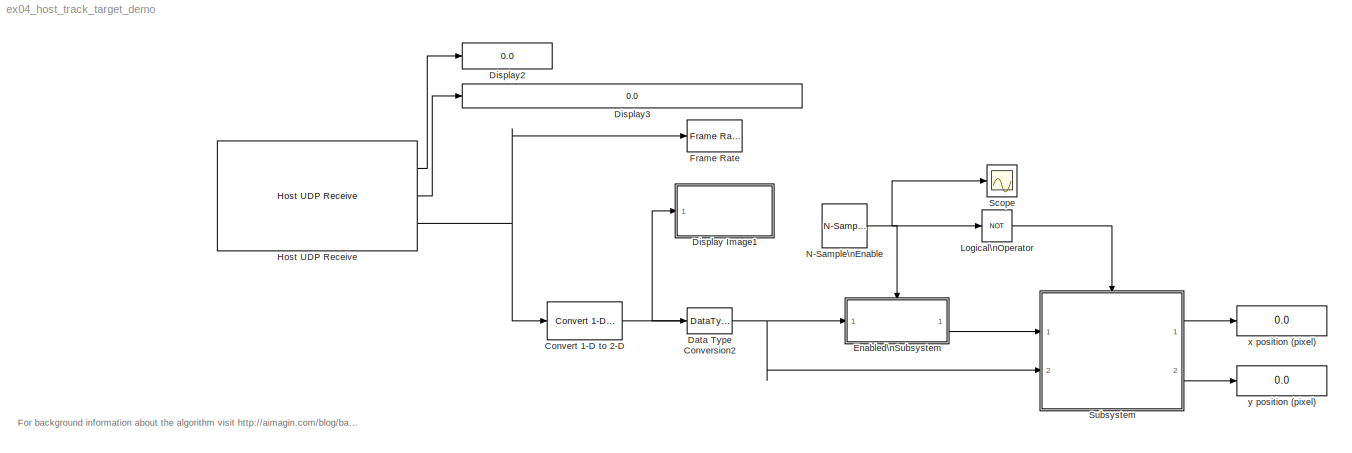
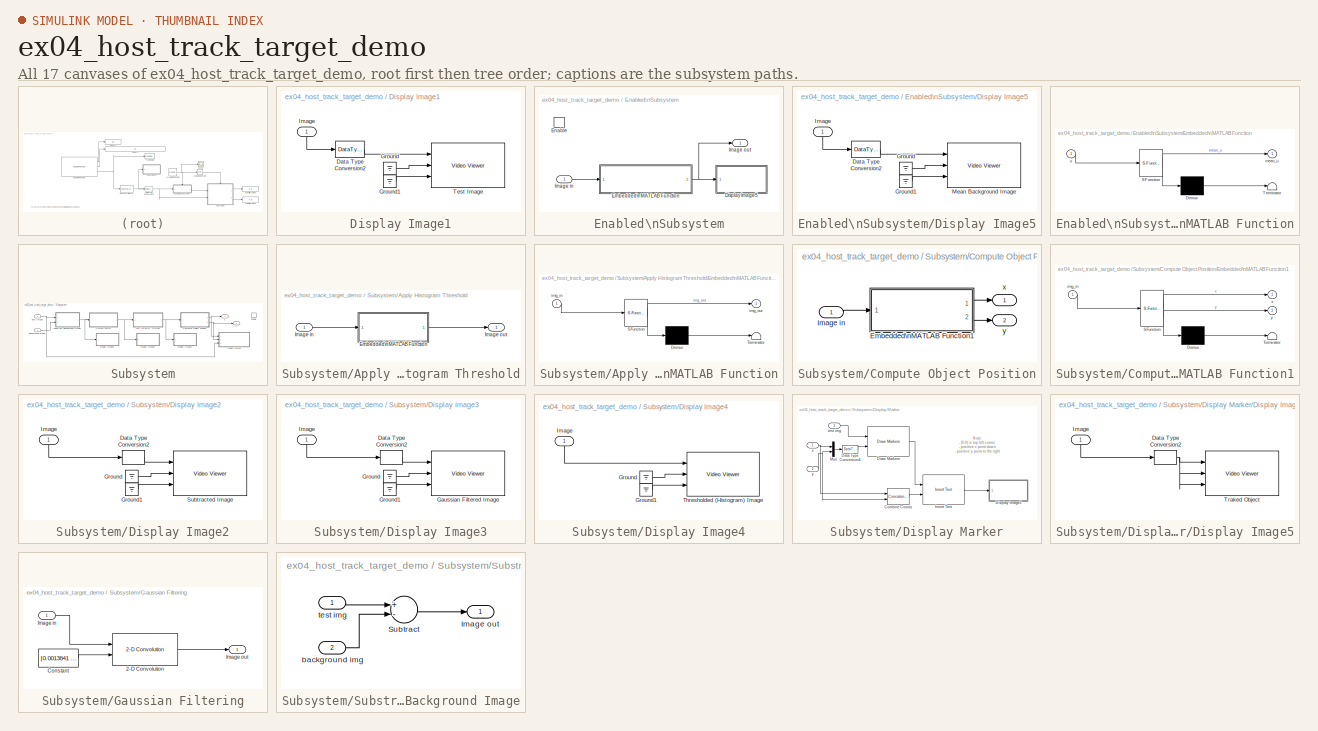
[diagram: thumbnail index - all 17 canvases of the model, root first then tree order]
MODEL ex04_host_track_target_demo
KIND model
CONFIG InitFcn = hsize = 20;\nsigma = 10;\ngaus_filt = fspecial('gaussian',hsize , sigma);\n
BLOCK [Reference] Convert 1-D to 2-D  REF=dspsigattribs/Convert 1-D to 2-D
  FunctionWithSeparateData = off
  M = 160
  N = 120
  Ports = [1, 1]
  RTWMemSecDataConstants = Inherit from model
  RTWMemSecDataInternal = Inherit from model
  RTWMemSecDataParameters = Inherit from model
  RTWMemSecFuncExecute = Inherit from model
  RTWMemSecFuncInitTerm = Inherit from model
  ShowPortLabels = none
  SourceBlock = dspsigattribs/Convert 1-D to 2-D
  SourceType = Convert 1-D to 2-D
  SystemSampleTime = -1
  frameBasedOut = off
BLOCK [DataTypeConversion] Data Type Conversion2
  OutDataType = fixdt(1, 16)
  OutScaling = 2^0
  RndMeth = Floor
  SaturateOnIntegerOverflow = off
BLOCK [SubSystem] Display Image1
  FunctionWithSeparateData = off
  MaskHideContents = off
  MinAlgLoopOccurrences = off
  Opaque = off
  Ports = [1]
  PropExecContextOutsideSubsystem = off
  RTWSystemCode = Auto
  RequestExecContextInheritance = off
BLOCK [DataTypeConversion] Display Image1/Data Type Conversion2
  OutDataType = fixdt(1, 16)
  OutDataTypeMode = uint8
  OutDataTypeStr = uint8
  OutScaling = 2^0
  RndMeth = Floor
  SaturateOnIntegerOverflow = off
BLOCK [Ground] Display Image1/Ground
BLOCK [Ground] Display Image1/Ground1
BLOCK [Inport] Display Image1/Image
  IconDisplay = Port number
BLOCK [Reference] Display Image1/Test Image  REF=vipsnks/Video Viewer
  AxisZoom = on
  DialogControllerArgs = DataTag1
  FigPos = [1056 516 410 398]
  OpenAtMdlStart = on
  Ports = [3]
  SourceBlock = vipsnks/Video Viewer
  SourceType = Video Viewer
  UserData = DataTag0
  UserDataPersistent = on
  colormapValue = gray(256)
  imagePorts = Separate color signals
  inputType = Obsolete7b
  maxInputVal = 255
  minInputVal = 0
  specRange = off
  trueSizedOnce = off
  useColorMap = off
BLOCK [Display] Display2
  Decimation = 1
  Lockdown = off
  Ports = [1]
BLOCK [Display] Display3
  Decimation = 1
  Lockdown = off
  Ports = [1]
BLOCK [SubSystem] Enabled\nSubsystem
  FunctionWithSeparateData = off
  MaskHideContents = off
  MinAlgLoopOccurrences = off
  Opaque = off
  Ports = [1, 1, 1]
  PropExecContextOutsideSubsystem = off
  RTWSystemCode = Auto
  RequestExecContextInheritance = off
  TreatAsAtomicUnit = on
BLOCK [SubSystem] Enabled\nSubsystem/Display Image5
  FunctionWithSeparateData = off
  MaskHideContents = off
  MinAlgLoopOccurrences = off
  Opaque = off
  Ports = [1]
  PropExecContextOutsideSubsystem = off
  RTWSystemCode = Auto
  RequestExecContextInheritance = off
BLOCK [DataTypeConversion] Enabled\nSubsystem/Display Image5/Data Type Conversion2
  OutDataType = fixdt(1, 16)
  OutDataTypeMode = uint8
  OutDataTypeStr = uint8
  OutScaling = 2^0
  RndMeth = Floor
  SaturateOnIntegerOverflow = off
BLOCK [Ground] Enabled\nSubsystem/Display Image5/Ground
BLOCK [Ground] Enabled\nSubsystem/Display Image5/Ground1
BLOCK [Inport] Enabled\nSubsystem/Display Image5/Image
  IconDisplay = Port number
BLOCK [Reference] Enabled\nSubsystem/Display Image5/Mean Background Image  REF=vipsnks/Video Viewer
  AxisZoom = on
  DialogControllerArgs = DataTag3
  FigPos = [1498 1035 410 398]
  OpenAtMdlStart = on
  Ports = [3]
  SourceBlock = vipsnks/Video Viewer
  SourceType = Video Viewer
  UserData = DataTag2
  UserDataPersistent = on
  colormapValue = gray(256)
  imagePorts = Separate color signals
  inputType = Obsolete7b
  maxInputVal = 255
  minInputVal = 0
  specRange = off
  trueSizedOnce = off
  useColorMap = off
BLOCK [SubSystem] Enabled\nSubsystem/Embedded\nMATLAB Function
  FunctionWithSeparateData = off
  MaskDescription = Embedded MATLAB block
  MaskDisplay = disp('recursive_mean');
  MaskHideContents = off
  MaskIconFrame = on
  MaskIconOpaque = off
  MaskIconRotate = none
  MaskIconUnits = autoscale
  MaskPortRotate = default
  MaskSelfModifiable = on
  MaskType = Stateflow
  MinAlgLoopOccurrences = off
  Opaque = off
  PermitHierarchicalResolution = ExplicitOnly
  Ports = [1, 1]
  PropExecContextOutsideSubsystem = off
  RTWSystemCode = Auto
  RequestExecContextInheritance = off
BLOCK [Demux] Enabled\nSubsystem/Embedded\nMATLAB Function/ Demux 
  Outputs = 1
  Ports = [1, 1]
BLOCK [S-Function] Enabled\nSubsystem/Embedded\nMATLAB Function/ SFunction 
  EnableBusSupport = on
  FunctionName = sf_sfun
  PortCounts = [1 2]
  Ports = [1, 2]
  Tag = Stateflow S-Function ex04_host_track_target_demo 3
BLOCK [Terminator] Enabled\nSubsystem/Embedded\nMATLAB Function/ Terminator 
BLOCK [Outport] Enabled\nSubsystem/Embedded\nMATLAB Function/mean_u
  IconDisplay = Port number
  OutDataType = sfix(16)
  OutScaling = 2^0
BLOCK [Inport] Enabled\nSubsystem/Embedded\nMATLAB Function/u
  IconDisplay = Port number
  OutDataType = sfix(16)
  OutScaling = 2^0
BLOCK [EnablePort] Enabled\nSubsystem/Enable
  Ports = []
BLOCK [Inport] Enabled\nSubsystem/Image in
  IconDisplay = Port number
  OutDataType = fixdt(1, 16)
  OutScaling = 2^0
BLOCK [Outport] Enabled\nSubsystem/Image out
  IconDisplay = Port number
  OutDataType = fixdt(1, 16)
  OutScaling = 2^0
BLOCK [Reference] Frame Rate  REF=vipsnks/Frame Rate\nDisplay
  DialogController = vipDDGCreate
  DialogControllerArgs = DataTag4
  Ports = [1]
  SourceBlock = vipsnks/Frame Rate\nDisplay
  SourceType = Frame Rate Display
  UpdateRate = 10
BLOCK [Reference] Host UDP Receive  REF=waijung_socket_lib/Host UDP Receive
  Ports = [0, 3]
  SourceBlock = waijung_socket_lib/Host UDP Receive
  SourceType = waijung_socket
  address = 192.168.1.21
  blockid = HostUDPReceive
  compat = 0
  conf = HostReceive
  datacount = 120*160
  datasource = BufferStream
  datatype = uint8
  echo = off
  inputportlabel = {}
  inputporttype = []
  inputportwidth = []
  options = [7,2,1,6000,1]
  optionstring = []
  outputportlabel = {'Remote Port','Remote IP(1:4)','Data(1:19200)'}
  outputporttype = [5,3,3]
  outputportwidth = [1,4,19200]
  port = 7
  portpinstr = 0
  porttype_double = 0
  porttype_int16 = 0
  porttype_int32 = 0
  porttype_int8 = 0
  porttype_single = 0
  porttype_uint16 = 0
  porttype_uint32 = 1
  porttype_uint8 = 0
  protocol = UDP
  sampletime = 0.1
  timeout = 6
  transfer = Blocking
BLOCK [Logic] Logical\nOperator
  AllPortsSameDT = off
  LogicDataType = fixdt(0, 8)
  Operator = NOT
  OutDataTypeMode = boolean
  OutDataTypeStr = boolean
  Ports = [1, 1]
BLOCK [Reference] N-Sample\nEnable  REF=dspswit3/N-Sample\nEnable
  ActiveLevel = Low (0)
  DataType = Logical
  N = 20
  Ports = [0, 1]
  SourceBlock = dspswit3/N-Sample\nEnable
  SourceType = N-Sample Enable
  TriggerType = Rising edge
  Ts = -1
  reset = off
BLOCK [Scope] Scope
  DataFormat = StructureWithTime
  Floating = off
  NumInputPorts = 1
  Ports = [1]
  SampleTime = 0
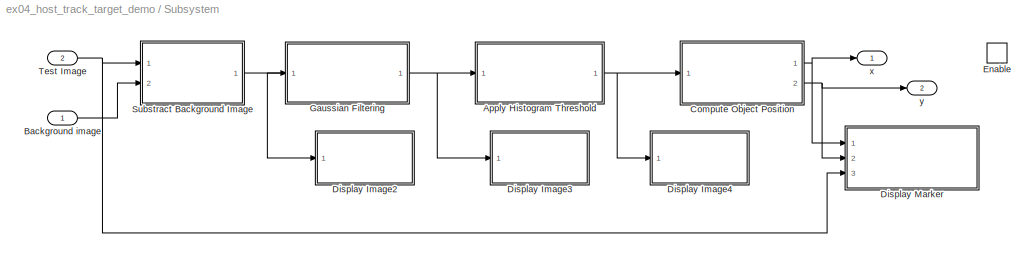
BLOCK [SubSystem] Subsystem
  FunctionWithSeparateData = off
  MaskHideContents = off
  MinAlgLoopOccurrences = off
  Opaque = off
  Ports = [2, 2, 1]
  PropExecContextOutsideSubsystem = off
  RTWSystemCode = Auto
  RequestExecContextInheritance = off
BLOCK [SubSystem] Subsystem/Apply Histogram Threshold
  FunctionWithSeparateData = off
  MaskHideContents = off
  MinAlgLoopOccurrences = off
  Opaque = off
  Ports = [1, 1]
  PropExecContextOutsideSubsystem = off
  RTWSystemCode = Auto
  RequestExecContextInheritance = off
BLOCK [SubSystem] Subsystem/Apply Histogram Threshold/Embedded\nMATLAB Function
  FunctionWithSeparateData = off
  MaskDescription = Embedded MATLAB block
  MaskDisplay = disp('fcn');
  MaskHideContents = off
  MaskIconFrame = on
  MaskIconOpaque = off
  MaskIconRotate = none
  MaskIconUnits = autoscale
  MaskPortRotate = default
  MaskSelfModifiable = on
  MaskType = Stateflow
  MinAlgLoopOccurrences = off
  Opaque = off
  PermitHierarchicalResolution = ExplicitOnly
  Ports = [1, 1]
  PropExecContextOutsideSubsystem = off
  RTWSystemCode = Auto
  RequestExecContextInheritance = off
BLOCK [Demux] Subsystem/Apply Histogram Threshold/Embedded\nMATLAB Function/ Demux 
  Outputs = 1
  Ports = [1, 1]
BLOCK [S-Function] Subsystem/Apply Histogram Threshold/Embedded\nMATLAB Function/ SFunction 
  EnableBusSupport = on
  FunctionName = sf_sfun
  PortCounts = [1 2]
  Ports = [1, 2]
  Tag = Stateflow S-Function ex04_host_track_target_demo 2
BLOCK [Terminator] Subsystem/Apply Histogram Threshold/Embedded\nMATLAB Function/ Terminator 
BLOCK [Inport] Subsystem/Apply Histogram Threshold/Embedded\nMATLAB Function/img_in
  IconDisplay = Port number
  OutDataType = sfix(16)
  OutScaling = 2^0
BLOCK [Outport] Subsystem/Apply Histogram Threshold/Embedded\nMATLAB Function/img_out
  IconDisplay = Port number
  OutDataType = sfix(16)
  OutScaling = 2^0
BLOCK [Inport] Subsystem/Apply Histogram Threshold/Image in
  IconDisplay = Port number
BLOCK [Outport] Subsystem/Apply Histogram Threshold/Image out
  IconDisplay = Port number
BLOCK [Inport] Subsystem/Background image
  IconDisplay = Port number
BLOCK [SubSystem] Subsystem/Compute Object Position
  FunctionWithSeparateData = off
  MaskHideContents = off
  MinAlgLoopOccurrences = off
  Opaque = off
  Ports = [1, 2]
  PropExecContextOutsideSubsystem = off
  RTWSystemCode = Auto
  RequestExecContextInheritance = off
BLOCK [SubSystem] Subsystem/Compute Object Position/Embedded\nMATLAB Function1
  FunctionWithSeparateData = off
  MaskDescription = Embedded MATLAB block
  MaskDisplay = disp('fcn');
  MaskHideContents = off
  MaskIconFrame = on
  MaskIconOpaque = off
  MaskIconRotate = none
  MaskIconUnits = autoscale
  MaskPortRotate = default
  MaskSelfModifiable = on
  MaskType = Stateflow
  MinAlgLoopOccurrences = off
  Opaque = off
  PermitHierarchicalResolution = ExplicitOnly
  Ports = [1, 2]
  PropExecContextOutsideSubsystem = off
  RTWSystemCode = Auto
  RequestExecContextInheritance = off
BLOCK [Demux] Subsystem/Compute Object Position/Embedded\nMATLAB Function1/ Demux 
  Outputs = 1
  Ports = [1, 1]
BLOCK [S-Function] Subsystem/Compute Object Position/Embedded\nMATLAB Function1/ SFunction 
  EnableBusSupport = on
  FunctionName = sf_sfun
  PortCounts = [1 3]
  Ports = [1, 3]
  Tag = Stateflow S-Function ex04_host_track_target_demo 1
BLOCK [Terminator] Subsystem/Compute Object Position/Embedded\nMATLAB Function1/ Terminator 
BLOCK [Inport] Subsystem/Compute Object Position/Embedded\nMATLAB Function1/img_in
  IconDisplay = Port number
  OutDataType = sfix(16)
  OutScaling = 2^0
BLOCK [Outport] Subsystem/Compute Object Position/Embedded\nMATLAB Function1/x
  IconDisplay = Port number
  OutDataType = sfix(16)
  OutScaling = 2^0
BLOCK [Outport] Subsystem/Compute Object Position/Embedded\nMATLAB Function1/y
  IconDisplay = Port number
  Port = 2
BLOCK [Inport] Subsystem/Compute Object Position/Image in
  IconDisplay = Port number
BLOCK [Outport] Subsystem/Compute Object Position/x
  IconDisplay = Port number
BLOCK [Outport] Subsystem/Compute Object Position/y
  IconDisplay = Port number
  Port = 2
BLOCK [SubSystem] Subsystem/Display Image2
  FunctionWithSeparateData = off
  MaskHideContents = off
  MinAlgLoopOccurrences = off
  Opaque = off
  Ports = [1]
  PropExecContextOutsideSubsystem = off
  RTWSystemCode = Auto
  RequestExecContextInheritance = off
BLOCK [DataTypeConversion] Subsystem/Display Image2/Data Type Conversion2
  OutDataType = fixdt(1, 16)
  OutDataTypeMode = uint8
  OutDataTypeStr = uint8
  OutScaling = 2^0
  RndMeth = Floor
  SaturateOnIntegerOverflow = off
BLOCK [Ground] Subsystem/Display Image2/Ground
BLOCK [Ground] Subsystem/Display Image2/Ground1
BLOCK [Inport] Subsystem/Display Image2/Image
  IconDisplay = Port number
BLOCK [Reference] Subsystem/Display Image2/Subtracted Image  REF=vipsnks/Video Viewer
  AxisZoom = on
  DialogControllerArgs = DataTag6
  FigPos = [618 1033 410 398]
  OpenAtMdlStart = on
  Ports = [3]
  SourceBlock = vipsnks/Video Viewer
  SourceType = Video Viewer
  UserData = DataTag5
  UserDataPersistent = on
  colormapValue = gray(256)
  imagePorts = Separate color signals
  inputType = Obsolete7b
  maxInputVal = 255
  minInputVal = 0
  specRange = off
  trueSizedOnce = off
  useColorMap = off
BLOCK [SubSystem] Subsystem/Display Image3
  FunctionWithSeparateData = off
  MaskHideContents = off
  MinAlgLoopOccurrences = off
  Opaque = off
  Ports = [1]
  PropExecContextOutsideSubsystem = off
  RTWSystemCode = Auto
  RequestExecContextInheritance = off
BLOCK [DataTypeConversion] Subsystem/Display Image3/Data Type Conversion2
  OutDataType = fixdt(1, 16)
  OutDataTypeMode = uint8
  OutDataTypeStr = uint8
  OutScaling = 2^0
  RndMeth = Floor
  SaturateOnIntegerOverflow = off
BLOCK [Reference] Subsystem/Display Image3/Gaussian Filtered Image  REF=vipsnks/Video Viewer
  AxisZoom = on
  DialogControllerArgs = DataTag8
  FigPos = [622 516 410 398]
  OpenAtMdlStart = on
  Ports = [3]
  SourceBlock = vipsnks/Video Viewer
  SourceType = Video Viewer
  UserData = DataTag7
  UserDataPersistent = on
  colormapValue = gray(256)
  imagePorts = Separate color signals
  inputType = Obsolete7b
  maxInputVal = 255
  minInputVal = 0
  specRange = off
  trueSizedOnce = off
  useColorMap = off
BLOCK [Ground] Subsystem/Display Image3/Ground
BLOCK [Ground] Subsystem/Display Image3/Ground1
BLOCK [Inport] Subsystem/Display Image3/Image
  IconDisplay = Port number
BLOCK [SubSystem] Subsystem/Display Image4
  FunctionWithSeparateData = off
  MaskHideContents = off
  MinAlgLoopOccurrences = off
  Opaque = off
  Ports = [1]
  PropExecContextOutsideSubsystem = off
  RTWSystemCode = Auto
  RequestExecContextInheritance = off
BLOCK [Ground] Subsystem/Display Image4/Ground
BLOCK [Ground] Subsystem/Display Image4/Ground1
BLOCK [Inport] Subsystem/Display Image4/Image
  IconDisplay = Port number
BLOCK [Reference] Subsystem/Display Image4/Thresholded (Histogram) Image  REF=vipsnks/Video Viewer
  AxisZoom = on
  DialogControllerArgs = DataTag10
  FigPos = [1492 513 410 398]
  OpenAtMdlStart = on
  Ports = [3]
  SourceBlock = vipsnks/Video Viewer
  SourceType = Video Viewer
  UserData = DataTag9
  UserDataPersistent = on
  colormapValue = gray(256)
  imagePorts = Separate color signals
  inputType = Obsolete7b
  maxInputVal = 255
  minInputVal = 0
  specRange = off
  trueSizedOnce = off
  useColorMap = off
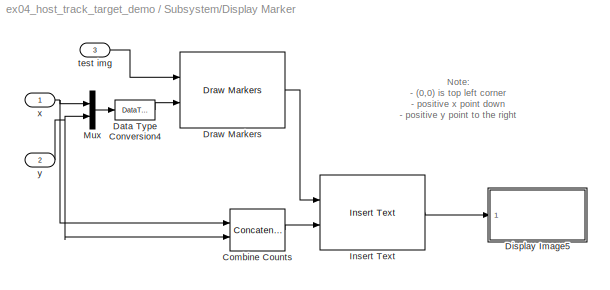
BLOCK [SubSystem] Subsystem/Display Marker
  FunctionWithSeparateData = off
  MaskHideContents = off
  MinAlgLoopOccurrences = off
  Opaque = off
  Ports = [3]
  PropExecContextOutsideSubsystem = off
  RTWSystemCode = Auto
  RequestExecContextInheritance = off
BLOCK [Concatenate] Subsystem/Display Marker/Combine Counts
  ConcatenateDimension = 2
  Mode = Multidimensional array
  Ports = [2, 1]
BLOCK [DataTypeConversion] Subsystem/Display Marker/Data Type Conversion4
  OutDataType = fixdt(1, 16)
  OutDataTypeMode = uint8
  OutDataTypeStr = uint8
  OutScaling = 2^0
  RndMeth = Floor
  SaturateOnIntegerOverflow = off
BLOCK [SubSystem] Subsystem/Display Marker/Display Image5
  FunctionWithSeparateData = off
  MaskHideContents = off
  MinAlgLoopOccurrences = off
  Opaque = off
  Ports = [1]
  PropExecContextOutsideSubsystem = off
  RTWSystemCode = Auto
  RequestExecContextInheritance = off
BLOCK [DataTypeConversion] Subsystem/Display Marker/Display Image5/Data Type Conversion2
  OutDataType = fixdt(1, 16)
  OutDataTypeMode = uint8
  OutDataTypeStr = uint8
  OutScaling = 2^0
  RndMeth = Floor
  SaturateOnIntegerOverflow = off
BLOCK [Inport] Subsystem/Display Marker/Display Image5/Image
  IconDisplay = Port number
BLOCK [Reference] Subsystem/Display Marker/Display Image5/Traked Object  REF=vipsnks/Video Viewer
  AxisZoom = on
  DialogControllerArgs = DataTag12
  FigPos = [1056 1035 410 398]
  OpenAtMdlStart = on
  Ports = [3]
  SourceBlock = vipsnks/Video Viewer
  SourceType = Video Viewer
  UserData = DataTag11
  UserDataPersistent = on
  colormapValue = gray(256)
  imagePorts = Separate color signals
  inputType = Obsolete7b
  maxInputVal = 255
  minInputVal = 0
  specRange = off
  trueSizedOnce = off
  useColorMap = off
BLOCK [Reference] Subsystem/Display Marker/Draw Markers  REF=viptextngfix/Draw Markers
  DialogController = vipDDGCreate
  DialogControllerArgs = DataTag13
  LockScale = off
  Ports = [2, 1]
  SourceBlock = viptextngfix/Draw Markers
  SourceType = Draw Markers
  accumFracLength = 14
  accumMode = Same as product output
  accumWordLength = 32
  antialiasing = off
  color = 1.5
  display = White
  fill = on
  fillClrSource = Specify via dialog
  imagePorts = One multidimensional signal
  inType = Obsolete
  intensity = 200
  memoryFracLength = 14
  memoryMode = Specify word length
  memoryWordLength = 16
  opacity = 0.6
  overflowMode = off
  prodOutputFracLength = 14
  prodOutputMode = Binary point scaling
  prodOutputWordLength = 32
  roundingMode = Floor
  shape = Square
  size = 5
  viewport = Entire image
BLOCK [Reference] Subsystem/Display Marker/Insert Text  REF=viptextngfix/Insert Text
  DialogController = vipDDGCreate
  DialogControllerArgs = DataTag14
  Ports = [2, 1]
  SourceBlock = viptextngfix/Insert Text
  SourceType = Insert Text
  antiAliased = on
  blockFontSize = 12
  dummyVar1 = 0
  dummyVar2 = 0
  dummyVar3 = 0
  dummyVar4 = 0
  fontFace = LucidaSansRegular
  getTextColorFrom = Specify via dialog
  getTextIntensityFrom = Specify via dialog
  getTextLocFrom = Specify via dialog
  getTextOpacityFrom = Specify via dialog
  imagePorts = One multidimensional signal
  inputType = Obsolete
  isInputTransposed = off
  textColor = [0 0 0]
  textIntensity = 0
  textLoc = [20 150]
  textOpacity = 1.0
  theText = 'x: %3.2f, y: %3.2f'
BLOCK [Mux] Subsystem/Display Marker/Mux
  DisplayOption = bar
  Inputs = 2
  Ports = [2, 1]
BLOCK [Inport] Subsystem/Display Marker/test img
  IconDisplay = Port number
  Port = 3
BLOCK [Inport] Subsystem/Display Marker/x
  IconDisplay = Port number
BLOCK [Inport] Subsystem/Display Marker/y
  IconDisplay = Port number
  Port = 2
BLOCK [EnablePort] Subsystem/Enable
  Ports = []
BLOCK [SubSystem] Subsystem/Gaussian Filtering
  FunctionWithSeparateData = off
  MaskHideContents = off
  MinAlgLoopOccurrences = off
  Opaque = off
  Ports = [1, 1]
  PropExecContextOutsideSubsystem = off
  RTWSystemCode = Auto
  RequestExecContextInheritance = off
BLOCK [Reference] Subsystem/Gaussian Filtering/2-D Convolution  REF=vipfilter/2-D Convolution
  DialogController = vipDDGCreate
  DialogControllerArgs = DataTag15
  LockScale = off
  Ports = [2, 1]
  SourceBlock = vipfilter/2-D Convolution
  SourceType = 2-D Convolution
  accumFracLength = 10
  accumMode = Same as product output
  accumWordLength = 32
  normalize = off
  outSize = Same as input port I1
  outputFracLength = 12
  outputMode = Binary point scaling
  outputWordLength = 32
  overflowMode = off
  prodOutputFracLength = 10
  prodOutputMode = Binary point scaling
  prodOutputWordLength = 32
  roundingMode = Floor
BLOCK [Constant] Subsystem/Gaussian Filtering/Constant
  OutDataType = fixdt(1, 16)
  OutScaling = 2^0
  Value = [0.0013841   0.0015144   0.0016406   0.0017595   0.0018683   0.0019641   0.0020443   0.0021065   0.0021491   0.0021707   0.0021707   0.0021491   0.0021065   0.0020443   0.0019641   0.0018683   0.0017595   0.0016406   0.0015144   0.0013841\n0.0015144   0.0016571   0.0017951   0.0019252   0.0020443   0.0021491   0.0022368   0.0023049   0.0023515   0.0023751   0.0023751   0.0023515   0.0023049   0.00...<+4380ch>
  VectorParams1D = off
BLOCK [Inport] Subsystem/Gaussian Filtering/Image in
  IconDisplay = Port number
BLOCK [Outport] Subsystem/Gaussian Filtering/Image out
  IconDisplay = Port number
BLOCK [SubSystem] Subsystem/Substract Background Image
  FunctionWithSeparateData = off
  MaskHideContents = off
  MinAlgLoopOccurrences = off
  Opaque = off
  Ports = [2, 1]
  PropExecContextOutsideSubsystem = off
  RTWSystemCode = Auto
  RequestExecContextInheritance = off
BLOCK [Outport] Subsystem/Substract Background Image/Image out
  IconDisplay = Port number
BLOCK [Sum] Subsystem/Substract Background Image/Subtract
  InputSameDT = off
  Inputs = +-
  OutDataType = fixdt(1, 16)
  OutDataTypeMode = Inherit via internal rule
  OutDataTypeStr = Inherit: Inherit via internal rule
  OutScaling = 2^-10
  Ports = [2, 1]
  RndMeth = Nearest
  SaturateOnIntegerOverflow = off
BLOCK [Inport] Subsystem/Substract Background Image/background img
  IconDisplay = Port number
  Port = 2
BLOCK [Inport] Subsystem/Substract Background Image/test img
  IconDisplay = Port number
BLOCK [Inport] Subsystem/Test Image
  IconDisplay = Port number
  Port = 2
BLOCK [Outport] Subsystem/x
  IconDisplay = Port number
BLOCK [Outport] Subsystem/y
  IconDisplay = Port number
  Port = 2
BLOCK [Display] x position (pixel)
  Decimation = 1
  Lockdown = off
  Ports = [1]
BLOCK [Display] y position (pixel)
  Decimation = 1
  Lockdown = off
  Ports = [1]
ANNOTATION (root): For background information about the algorithm visit http://aimagin.com/blog/basic-image-processing-object-tracking/
ANNOTATION Subsystem/Display Marker: Note:\n- (0,0) is top left corner\n- positive x point down\n- positive y point to the right
NET Convert 1-D to 2-D:1 -> Data Type Conversion2:1, Display Image1:1
NET Data Type Conversion2:1 -> Enabled\nSubsystem:1, Subsystem:2
LINE Display Image1/Data Type Conversion2:1 -> Display Image1/Test Image:1
LINE Display Image1/Ground1:1 -> Display Image1/Test Image:3
LINE Display Image1/Ground:1 -> Display Image1/Test Image:2
LINE Display Image1/Image:1 -> Display Image1/Data Type Conversion2:1
LINE Enabled\nSubsystem/Display Image5/Data Type Conversion2:1 -> Enabled\nSubsystem/Display Image5/Mean Background Image:1
LINE Enabled\nSubsystem/Display Image5/Ground1:1 -> Enabled\nSubsystem/Display Image5/Mean Background Image:3
LINE Enabled\nSubsystem/Display Image5/Ground:1 -> Enabled\nSubsystem/Display Image5/Mean Background Image:2
LINE Enabled\nSubsystem/Display Image5/Image:1 -> Enabled\nSubsystem/Display Image5/Data Type Conversion2:1
LINE Enabled\nSubsystem/Embedded\nMATLAB Function/ Demux :1 -> Enabled\nSubsystem/Embedded\nMATLAB Function/ Terminator :1
LINE Enabled\nSubsystem/Embedded\nMATLAB Function/ SFunction :1 -> Enabled\nSubsystem/Embedded\nMATLAB Function/ Demux :1
LINE Enabled\nSubsystem/Embedded\nMATLAB Function/ SFunction :2 -> Enabled\nSubsystem/Embedded\nMATLAB Function/mean_u:1
LINE Enabled\nSubsystem/Embedded\nMATLAB Function/u:1 -> Enabled\nSubsystem/Embedded\nMATLAB Function/ SFunction :1
NET Enabled\nSubsystem/Embedded\nMATLAB Function:1 -> Enabled\nSubsystem/Display Image5:1, Enabled\nSubsystem/Image out:1
LINE Enabled\nSubsystem/Image in:1 -> Enabled\nSubsystem/Embedded\nMATLAB Function:1
LINE Enabled\nSubsystem:1 -> Subsystem:1
LINE Host UDP Receive:1 -> Display2:1
LINE Host UDP Receive:2 -> Display3:1
NET Host UDP Receive:3 -> Convert 1-D to 2-D:1, Frame Rate:1
LINE Logical\nOperator:1 -> Subsystem:enable
NET N-Sample\nEnable:1 -> Enabled\nSubsystem:enable, Logical\nOperator:1, Scope:1
LINE Subsystem/Apply Histogram Threshold/Embedded\nMATLAB Function/ Demux :1 -> Subsystem/Apply Histogram Threshold/Embedded\nMATLAB Function/ Terminator :1
LINE Subsystem/Apply Histogram Threshold/Embedded\nMATLAB Function/ SFunction :1 -> Subsystem/Apply Histogram Threshold/Embedded\nMATLAB Function/ Demux :1
LINE Subsystem/Apply Histogram Threshold/Embedded\nMATLAB Function/ SFunction :2 -> Subsystem/Apply Histogram Threshold/Embedded\nMATLAB Function/img_out:1
LINE Subsystem/Apply Histogram Threshold/Embedded\nMATLAB Function/img_in:1 -> Subsystem/Apply Histogram Threshold/Embedded\nMATLAB Function/ SFunction :1
LINE Subsystem/Apply Histogram Threshold/Embedded\nMATLAB Function:1 -> Subsystem/Apply Histogram Threshold/Image out:1
LINE Subsystem/Apply Histogram Threshold/Image in:1 -> Subsystem/Apply Histogram Threshold/Embedded\nMATLAB Function:1
NET Subsystem/Apply Histogram Threshold:1 -> Subsystem/Compute Object Position:1, Subsystem/Display Image4:1
LINE Subsystem/Background image:1 -> Subsystem/Substract Background Image:2
LINE Subsystem/Compute Object Position/Embedded\nMATLAB Function1/ Demux :1 -> Subsystem/Compute Object Position/Embedded\nMATLAB Function1/ Terminator :1
LINE Subsystem/Compute Object Position/Embedded\nMATLAB Function1/ SFunction :1 -> Subsystem/Compute Object Position/Embedded\nMATLAB Function1/ Demux :1
LINE Subsystem/Compute Object Position/Embedded\nMATLAB Function1/ SFunction :2 -> Subsystem/Compute Object Position/Embedded\nMATLAB Function1/x:1
LINE Subsystem/Compute Object Position/Embedded\nMATLAB Function1/ SFunction :3 -> Subsystem/Compute Object Position/Embedded\nMATLAB Function1/y:1
LINE Subsystem/Compute Object Position/Embedded\nMATLAB Function1/img_in:1 -> Subsystem/Compute Object Position/Embedded\nMATLAB Function1/ SFunction :1
LINE Subsystem/Compute Object Position/Embedded\nMATLAB Function1:1 -> Subsystem/Compute Object Position/x:1
LINE Subsystem/Compute Object Position/Embedded\nMATLAB Function1:2 -> Subsystem/Compute Object Position/y:1
LINE Subsystem/Compute Object Position/Image in:1 -> Subsystem/Compute Object Position/Embedded\nMATLAB Function1:1
NET Subsystem/Compute Object Position:1 -> Subsystem/Display Marker:1, Subsystem/x:1
NET Subsystem/Compute Object Position:2 -> Subsystem/Display Marker:2, Subsystem/y:1
LINE Subsystem/Display Image2/Data Type Conversion2:1 -> Subsystem/Display Image2/Subtracted Image:1
LINE Subsystem/Display Image2/Ground1:1 -> Subsystem/Display Image2/Subtracted Image:3
LINE Subsystem/Display Image2/Ground:1 -> Subsystem/Display Image2/Subtracted Image:2
LINE Subsystem/Display Image2/Image:1 -> Subsystem/Display Image2/Data Type Conversion2:1
LINE Subsystem/Display Image3/Data Type Conversion2:1 -> Subsystem/Display Image3/Gaussian Filtered Image:1
LINE Subsystem/Display Image3/Ground1:1 -> Subsystem/Display Image3/Gaussian Filtered Image:3
LINE Subsystem/Display Image3/Ground:1 -> Subsystem/Display Image3/Gaussian Filtered Image:2
LINE Subsystem/Display Image3/Image:1 -> Subsystem/Display Image3/Data Type Conversion2:1
LINE Subsystem/Display Image4/Ground1:1 -> Subsystem/Display Image4/Thresholded (Histogram) Image:3
LINE Subsystem/Display Image4/Ground:1 -> Subsystem/Display Image4/Thresholded (Histogram) Image:2
LINE Subsystem/Display Image4/Image:1 -> Subsystem/Display Image4/Thresholded (Histogram) Image:1
LINE Subsystem/Display Marker/Combine Counts:1 -> Subsystem/Display Marker/Insert Text:2
LINE Subsystem/Display Marker/Data Type Conversion4:1 -> Subsystem/Display Marker/Draw Markers:2
NET Subsystem/Display Marker/Display Image5/Data Type Conversion2:1 -> Subsystem/Display Marker/Display Image5/Traked Object:1, Subsystem/Display Marker/Display Image5/Traked Object:2, Subsystem/Display Marker/Display Image5/Traked Object:3
LINE Subsystem/Display Marker/Display Image5/Image:1 -> Subsystem/Display Marker/Display Image5/Data Type Conversion2:1
LINE Subsystem/Display Marker/Draw Markers:1 -> Subsystem/Display Marker/Insert Text:1
LINE Subsystem/Display Marker/Insert Text:1 -> Subsystem/Display Marker/Display Image5:1
LINE Subsystem/Display Marker/Mux:1 -> Subsystem/Display Marker/Data Type Conversion4:1
LINE Subsystem/Display Marker/test img:1 -> Subsystem/Display Marker/Draw Markers:1
NET Subsystem/Display Marker/x:1 -> Subsystem/Display Marker/Combine Counts:1, Subsystem/Display Marker/Mux:1
NET Subsystem/Display Marker/y:1 -> Subsystem/Display Marker/Combine Counts:2, Subsystem/Display Marker/Mux:2
LINE Subsystem/Gaussian Filtering/2-D Convolution:1 -> Subsystem/Gaussian Filtering/Image out:1
LINE Subsystem/Gaussian Filtering/Constant:1 -> Subsystem/Gaussian Filtering/2-D Convolution:2
LINE Subsystem/Gaussian Filtering/Image in:1 -> Subsystem/Gaussian Filtering/2-D Convolution:1
NET Subsystem/Gaussian Filtering:1 -> Subsystem/Apply Histogram Threshold:1, Subsystem/Display Image3:1
LINE Subsystem/Substract Background Image/Subtract:1 -> Subsystem/Substract Background Image/Image out:1
LINE Subsystem/Substract Background Image/background img:1 -> Subsystem/Substract Background Image/Subtract:2
LINE Subsystem/Substract Background Image/test img:1 -> Subsystem/Substract Background Image/Subtract:1
NET Subsystem/Substract Background Image:1 -> Subsystem/Display Image2:1, Subsystem/Gaussian Filtering:1
NET Subsystem/Test Image:1 -> Subsystem/Display Marker:3, Subsystem/Substract Background Image:1
LINE Subsystem:1 -> x position (pixel):1
LINE Subsystem:2 -> y position (pixel):1
note: NET lines group one-source signal fan-out (src -> all destinations, sorted); 1:1 wires keep LINE
CHART Subsystem/Compute Object Position/Embedded\nMATLAB Function1 states=1 transitions=1
  STATE_LABEL 'eML_blk_kernel()'
CHART Subsystem/Apply Histogram Threshold/Embedded\nMATLAB Function states=1 transitions=1
  STATE_LABEL 'eML_blk_kernel()'
CHART Enabled\nSubsystem/Embedded\nMATLAB Function states=1 transitions=1
  STATE_LABEL 'eML_blk_kernel()'
